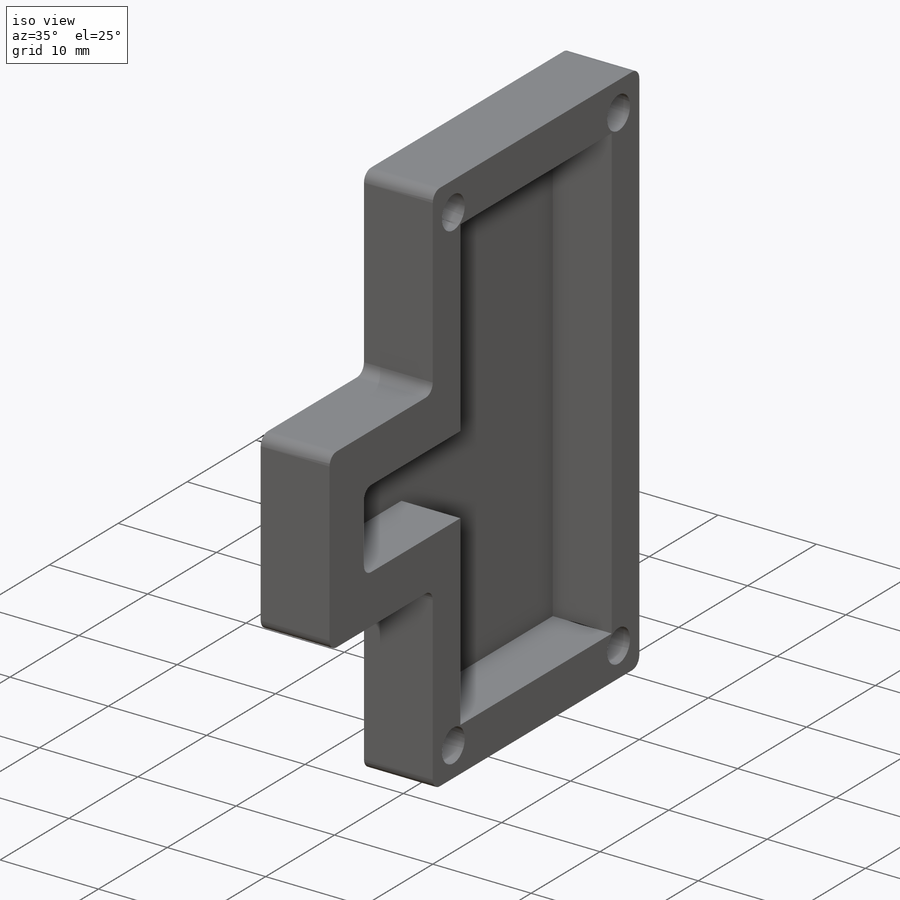
[diagram: iso view]
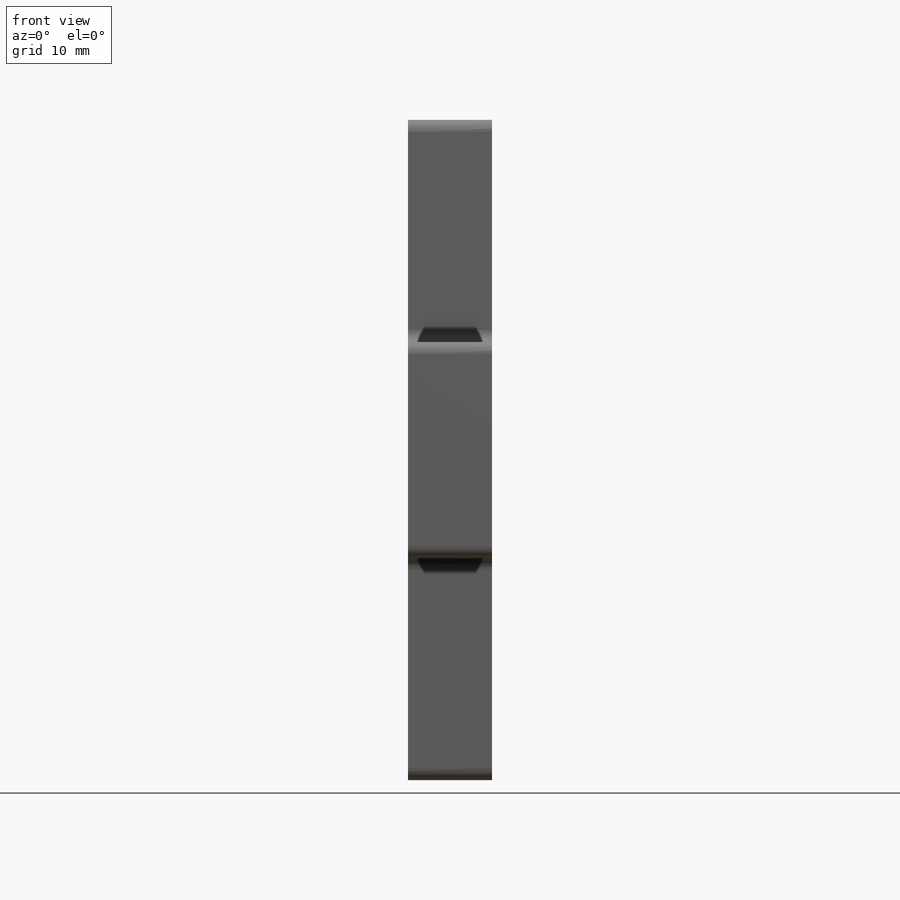
[diagram: front view]
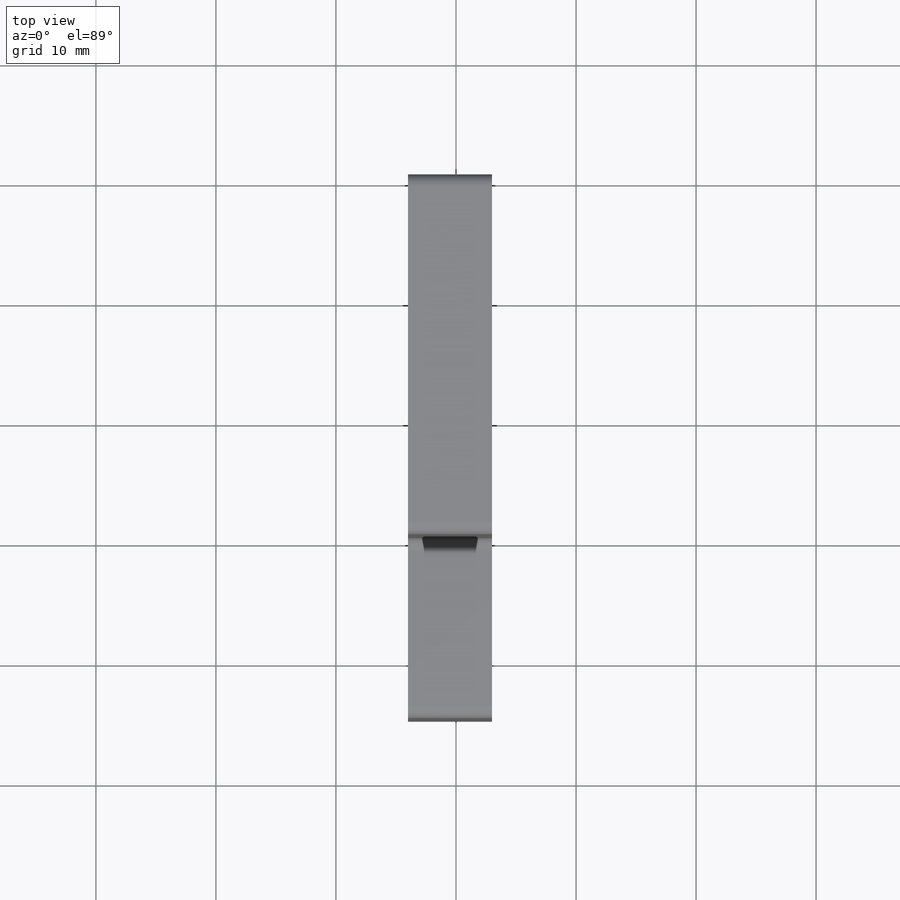
[diagram: top view]
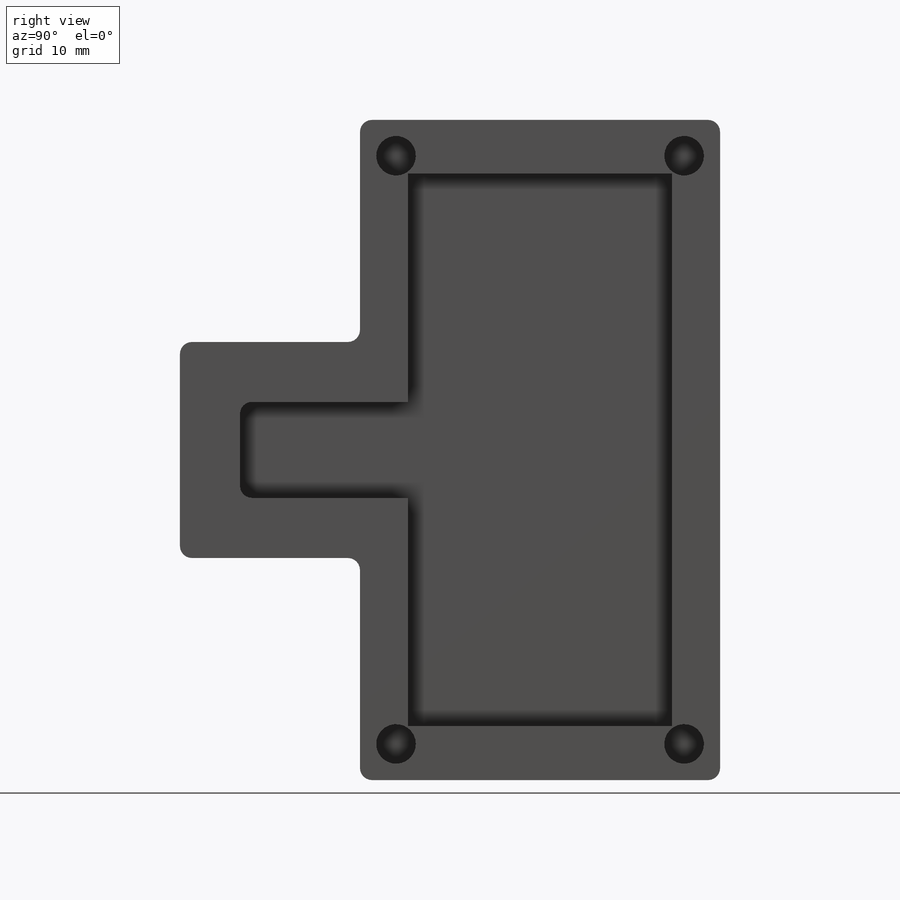
[diagram: right view]
SOLIDWORKS PART (.sldprt)
format: sldprt  version: not decoded by parser v0  size: 650,752 bytes
history: native  units: mm
features: sketch x13, plane x8, extrude x4, cut_extrude x4, fillet x3, mirror x2, material x1 (+12 scaffold rows collapsed)
feature tree (47):
  scaffold x12  (default folders/planes/origin — collapsed)
  material  "Material <not specified>"
  sketch  "Sketch1"  dims[c1.D1=30.0mm c1.D2=13.0mm c1.D3=~80.474481mm c2.D3=60.0deg]
  extrude  "Boss-Extrude1"  Depth=55mm
  sketch  "Sketch2"  dims[D1=22.0mm D2=46.0mm]
  plane  "Plane2"  Offset=3mm
  plane  "Plane3"
  sketch  "Sketch5"
  sketch  "Sketch3"  dims[D1=~25.403412mm D2=~38.796343mm]
  plane  "Plane4"  Offset=7mm
  sketch  "Sketch7"  dims[c1.D1=5.0mm c1.D2=~5.262818mm c2.D2=45.0deg c2.D3=2.0mm]
  extrude  "Boss-Extrude2"  Depth=6.35mm
  sketch  "Sketch8"  dims[D1=8.0mm]
  cut_extrude  "Cut-Extrude1"  Depth=30mm
  sketch  "Sketch9"  dims[D1=5.0mm D2=15.0mm D3=5.0mm]
  extrude  "Boss-Extrude3"  [1 undecoded]
  sketch  "Sketch10"  dims[D2=3.3mm D1=3.0mm]
  plane  "Plane7"  Offset=3mm
  sketch  "Sketch11"  dims[D1=3.7mm]
  plane  "Plane8"  Offset=6mm
  sketch  "Sketch12"  dims[D1=3.3mm]
  cut_extrude  "Cut-Loft2"  [1 undecoded]
  plane  "Plane9"
  plane  "Plane10"
  mirror  "Mirror1"
  mirror  "Mirror2"
  fillet  "Fillet1"  Radius=1mm
  fillet  "Fillet2"  Radius=0.5mm
  fillet  "Fillet3"  Radius=0.5mm
  sketch  "Sketch13"  dims[D1=2.8067mm]
  cut_extrude  "Cut-Extrude2"  Depth=5mm
  sketch  "Sketch14"
  cut_extrude  "Cut-Extrude4"  Depth=43mm
  sketch  "Sketch15"
  extrude  "Boss-Extrude4"  Depth=1mm
  plane  "Plane11"
decode coverage: 19 of 26 modeling features carry decoded parameters
note: ~ marks probable driven/reference dimensions
note: 2 parameter values undecoded
note: suppression state not decoded; provenance and decode notes live in map.json
